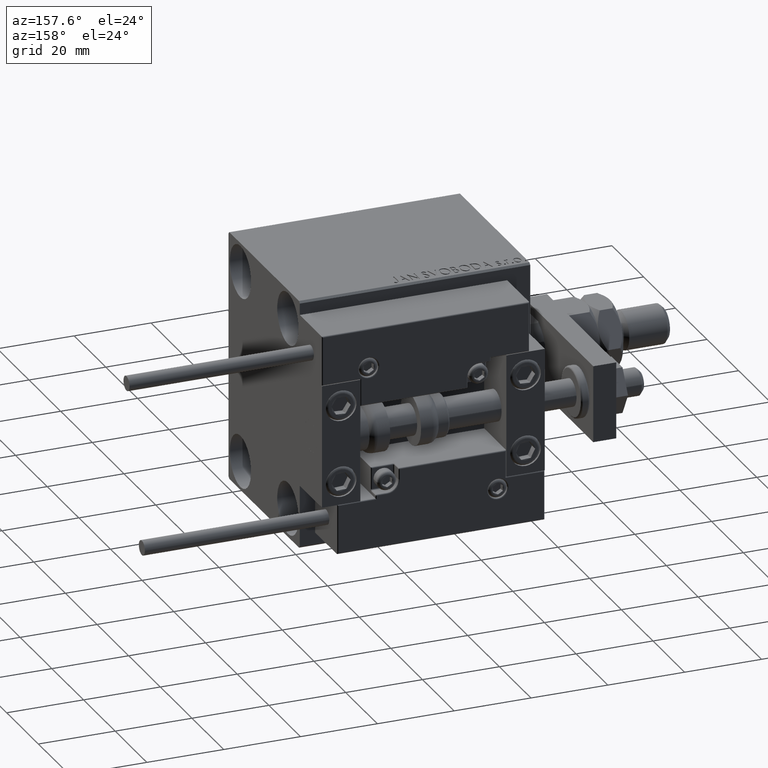
[diagram: clean part render]
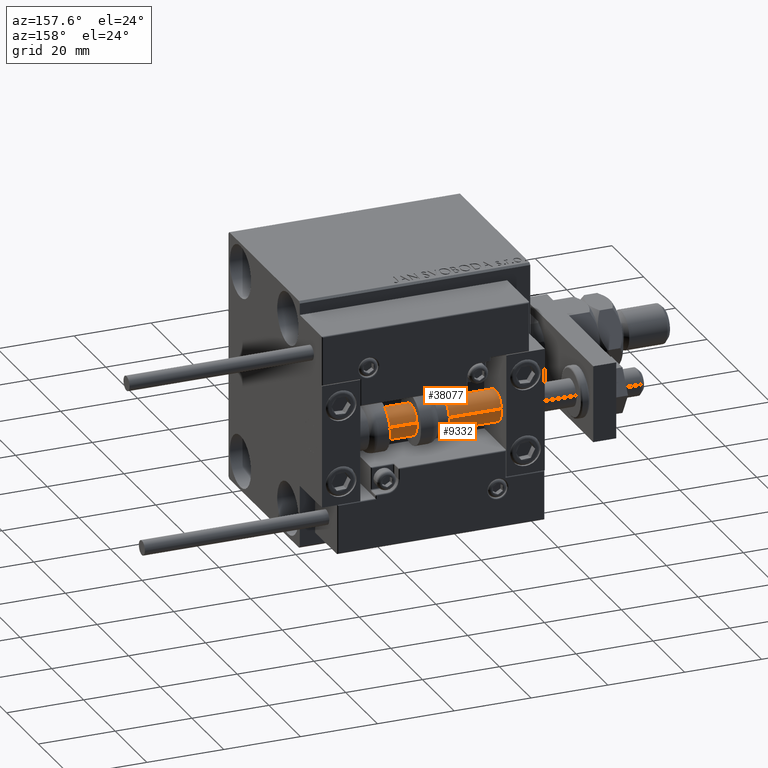
[diagram: same view with one multi-face feature highlighted, each face labeled with its STEP entity id]
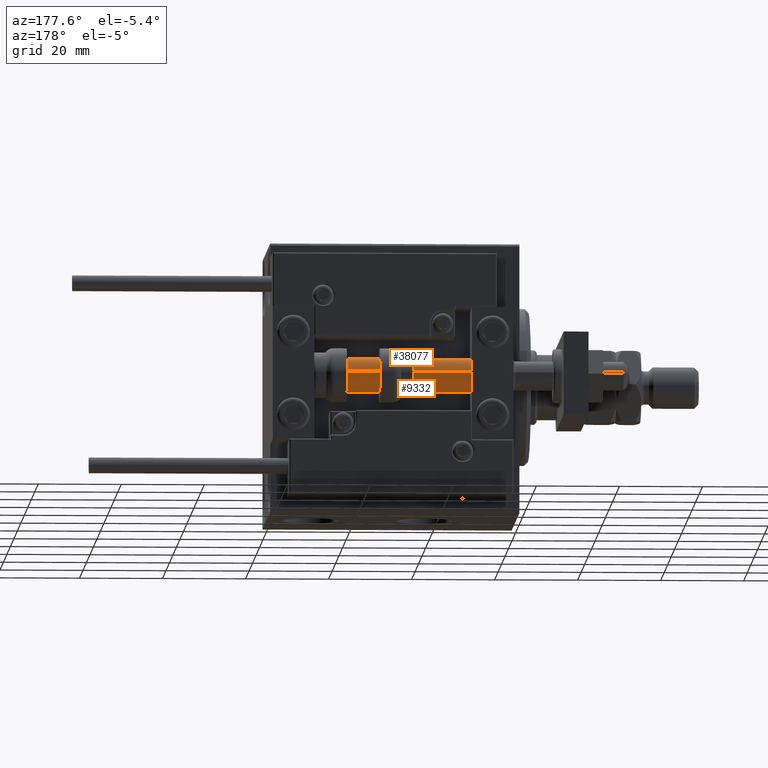
[diagram: same view with one multi-face feature highlighted, each face labeled with its STEP entity id]
A machine part, auxiliary view. The highlighted faces form ONE feature: a constant-radius fillet chain: 2 tangent blend faces with common blend radius 4 mm. The faces share edges in the B-rep.
A second angle (auxiliary view) of the same feature is appended — it is thin or edge-on in the first view.
Their STEP definitions:
[1] entity #38077 (Cylinder):
#1409 = CYLINDRICAL_SURFACE ( 'NONE', #24940, 4.000000000000000000 ) ;
#2669 = AXIS2_PLACEMENT_3D ( 'NONE', #12979, #37109, #12720 ) ;
#6098 = EDGE_CURVE ( 'NONE', #25221, #16697, #51623, .T. ) ;
#10344 = CARTESIAN_POINT ( 'NONE',  ( 4.000000000000000000, 4.898587196589412829E-16, 2.000000000000036415 ) ) ;
#12720 = DIRECTION ( 'NONE',  ( 1.000000000000000000, 0.000000000000000000, 0.000000000000000000 ) ) ;
#12979 = CARTESIAN_POINT ( 'NONE',  ( 0.000000000000000000, 0.000000000000000000, 2.000000000000036415 ) ) ;
#13351 = CARTESIAN_POINT ( 'NONE',  ( 4.000000000000000000, 4.898587196589412829E-16, 60.00000000000000000 ) ) ;
#13558 = ORIENTED_EDGE ( 'NONE', *, *, #35777, .T. ) ;
#13983 = EDGE_CURVE ( 'NONE', #16697, #25629, #44472, .T. ) ;
#15311 = CARTESIAN_POINT ( 'NONE',  ( 4.000000000000000000, 4.898587196589412829E-16, 60.00000000000000000 ) ) ;
#15569 = LINE ( 'NONE', #15311, #40785 ) ;
#16697 = VERTEX_POINT ( 'NONE', #23637 ) ;
#17531 = VECTOR ( 'NONE', #41022, 1000.000000000000000 ) ;
#17663 = EDGE_LOOP ( 'NONE', ( #34040, #13558, #19295, #41909 ) ) ;
#17939 = DIRECTION ( 'NONE',  ( -0.000000000000000000, -0.000000000000000000, -1.000000000000000000 ) ) ;
#19295 = ORIENTED_EDGE ( 'NONE', *, *, #19872, .T. ) ;
#19872 = EDGE_CURVE ( 'NONE', #45399, #25629, #40362, .T. ) ;
#23551 = DIRECTION ( 'NONE',  ( 0.000000000000000000, 0.000000000000000000, 1.000000000000000000 ) ) ;
#23637 = CARTESIAN_POINT ( 'NONE',  ( -4.000000000000000000, 0.000000000000000000, 60.00000000000000000 ) ) ;
#24940 = AXIS2_PLACEMENT_3D ( 'NONE', #50244, #17939, #29216 ) ;
#25221 = VERTEX_POINT ( 'NONE', #13351 ) ;
#25629 = VERTEX_POINT ( 'NONE', #42418 ) ;
#29216 = DIRECTION ( 'NONE',  ( -1.000000000000000000, 0.000000000000000000, 0.000000000000000000 ) ) ;
#31931 = DIRECTION ( 'NONE',  ( 1.000000000000000000, 0.000000000000000000, 0.000000000000000000 ) ) ;
#32878 = CARTESIAN_POINT ( 'NONE',  ( -4.000000000000000000, 0.000000000000000000, 60.00000000000000000 ) ) ;
#34040 = ORIENTED_EDGE ( 'NONE', *, *, #6098, .F. ) ;
#35103 = CARTESIAN_POINT ( 'NONE',  ( 0.000000000000000000, 0.000000000000000000, 60.00000000000000000 ) ) ;
#35777 = EDGE_CURVE ( 'NONE', #25221, #45399, #15569, .T. ) ;
#37109 = DIRECTION ( 'NONE',  ( -0.000000000000000000, -0.000000000000000000, 1.000000000000000000 ) ) ;
#38077 = ADVANCED_FACE ( 'NONE', ( #41308 ), #1409, .T. ) ;
#39860 = AXIS2_PLACEMENT_3D ( 'NONE', #35103, #23551, #31931 ) ;
#40362 = CIRCLE ( 'NONE', #2669, 4.000000000000000000 ) ;
#40785 = VECTOR ( 'NONE', #47365, 1000.000000000000000 ) ;
#41022 = DIRECTION ( 'NONE',  ( -0.000000000000000000, -0.000000000000000000, -1.000000000000000000 ) ) ;
#41308 = FACE_OUTER_BOUND ( 'NONE', #17663, .T. ) ;
#41909 = ORIENTED_EDGE ( 'NONE', *, *, #13983, .F. ) ;
#42418 = CARTESIAN_POINT ( 'NONE',  ( -4.000000000000000000, 0.000000000000000000, 2.000000000000036415 ) ) ;
#44472 = LINE ( 'NONE', #32878, #17531 ) ;
#45399 = VERTEX_POINT ( 'NONE', #10344 ) ;
#47365 = DIRECTION ( 'NONE',  ( -0.000000000000000000, -0.000000000000000000, -1.000000000000000000 ) ) ;
#50244 = CARTESIAN_POINT ( 'NONE',  ( 0.000000000000000000, 0.000000000000000000, 60.00000000000000000 ) ) ;
#51623 = CIRCLE ( 'NONE', #39860, 4.000000000000000000 ) ;
[2] entity #9332 (Cylinder):
#853 = ORIENTED_EDGE ( 'NONE', *, *, #11127, .T. ) ;
#989 = EDGE_CURVE ( 'NONE', #16697, #25221, #10336, .T. ) ;
#5751 = ORIENTED_EDGE ( 'NONE', *, *, #35777, .F. ) ;
#9332 = ADVANCED_FACE ( 'NONE', ( #32291 ), #44647, .T. ) ;
#10336 = CIRCLE ( 'NONE', #43054, 4.000000000000000000 ) ;
#10344 = CARTESIAN_POINT ( 'NONE',  ( 4.000000000000000000, 4.898587196589412829E-16, 2.000000000000036415 ) ) ;
#10366 = CARTESIAN_POINT ( 'NONE',  ( 0.000000000000000000, 0.000000000000000000, 2.000000000000036415 ) ) ;
#11127 = EDGE_CURVE ( 'NONE', #25629, #45399, #20854, .T. ) ;
#12356 = DIRECTION ( 'NONE',  ( -1.000000000000000000, 0.000000000000000000, 0.000000000000000000 ) ) ;
#13351 = CARTESIAN_POINT ( 'NONE',  ( 4.000000000000000000, 4.898587196589412829E-16, 60.00000000000000000 ) ) ;
#13983 = EDGE_CURVE ( 'NONE', #16697, #25629, #44472, .T. ) ;
#14565 = DIRECTION ( 'NONE',  ( 1.000000000000000000, 0.000000000000000000, 0.000000000000000000 ) ) ;
#15311 = CARTESIAN_POINT ( 'NONE',  ( 4.000000000000000000, 4.898587196589412829E-16, 60.00000000000000000 ) ) ;
#15569 = LINE ( 'NONE', #15311, #40785 ) ;
#16697 = VERTEX_POINT ( 'NONE', #23637 ) ;
#17531 = VECTOR ( 'NONE', #41022, 1000.000000000000000 ) ;
#18981 = ORIENTED_EDGE ( 'NONE', *, *, #989, .F. ) ;
#20854 = CIRCLE ( 'NONE', #25064, 4.000000000000000000 ) ;
#23637 = CARTESIAN_POINT ( 'NONE',  ( -4.000000000000000000, 0.000000000000000000, 60.00000000000000000 ) ) ;
#23770 = CARTESIAN_POINT ( 'NONE',  ( 0.000000000000000000, 0.000000000000000000, 60.00000000000000000 ) ) ;
#25064 = AXIS2_PLACEMENT_3D ( 'NONE', #10366, #50546, #14565 ) ;
#25221 = VERTEX_POINT ( 'NONE', #13351 ) ;
#25629 = VERTEX_POINT ( 'NONE', #42418 ) ;
#31766 = ORIENTED_EDGE ( 'NONE', *, *, #13983, .T. ) ;
#32291 = FACE_OUTER_BOUND ( 'NONE', #43899, .T. ) ;
#32793 = DIRECTION ( 'NONE',  ( -0.000000000000000000, -0.000000000000000000, -1.000000000000000000 ) ) ;
#32878 = CARTESIAN_POINT ( 'NONE',  ( -4.000000000000000000, 0.000000000000000000, 60.00000000000000000 ) ) ;
#35777 = EDGE_CURVE ( 'NONE', #25221, #45399, #15569, .T. ) ;
#39522 = DIRECTION ( 'NONE',  ( 1.000000000000000000, 0.000000000000000000, 0.000000000000000000 ) ) ;
#40038 = DIRECTION ( 'NONE',  ( 0.000000000000000000, 0.000000000000000000, 1.000000000000000000 ) ) ;
#40785 = VECTOR ( 'NONE', #47365, 1000.000000000000000 ) ;
#41022 = DIRECTION ( 'NONE',  ( -0.000000000000000000, -0.000000000000000000, -1.000000000000000000 ) ) ;
#42418 = CARTESIAN_POINT ( 'NONE',  ( -4.000000000000000000, 0.000000000000000000, 2.000000000000036415 ) ) ;
#43054 = AXIS2_PLACEMENT_3D ( 'NONE', #23770, #40038, #39522 ) ;
#43495 = AXIS2_PLACEMENT_3D ( 'NONE', #48341, #32793, #12356 ) ;
#43899 = EDGE_LOOP ( 'NONE', ( #5751, #18981, #31766, #853 ) ) ;
#44472 = LINE ( 'NONE', #32878, #17531 ) ;
#44647 = CYLINDRICAL_SURFACE ( 'NONE', #43495, 4.000000000000000000 ) ;
#45399 = VERTEX_POINT ( 'NONE', #10344 ) ;
#47365 = DIRECTION ( 'NONE',  ( -0.000000000000000000, -0.000000000000000000, -1.000000000000000000 ) ) ;
#48341 = CARTESIAN_POINT ( 'NONE',  ( 0.000000000000000000, 0.000000000000000000, 60.00000000000000000 ) ) ;
#50546 = DIRECTION ( 'NONE',  ( -0.000000000000000000, -0.000000000000000000, 1.000000000000000000 ) ) ;